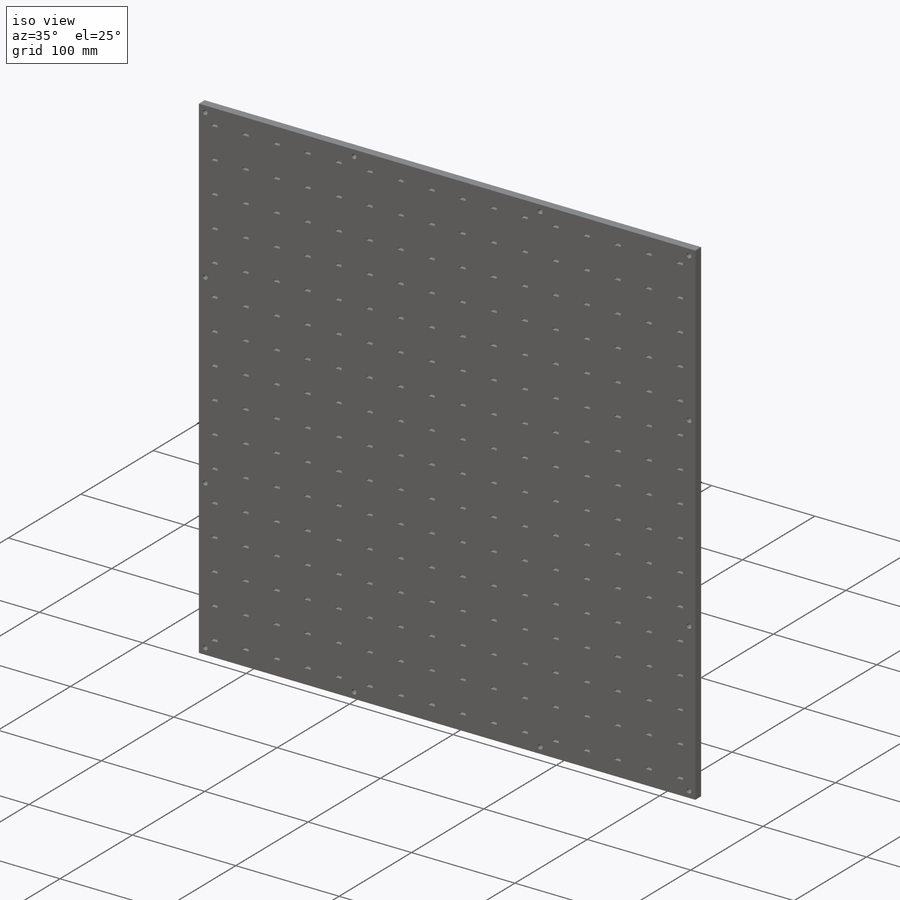
[diagram: iso view]
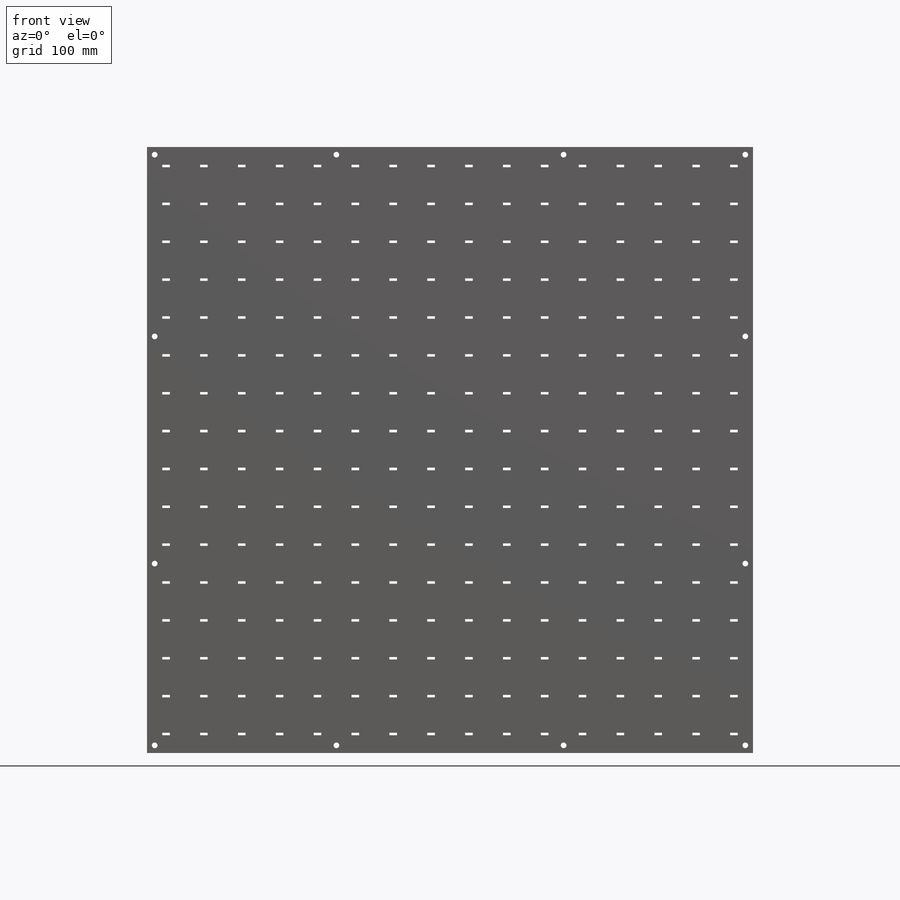
[diagram: front view]
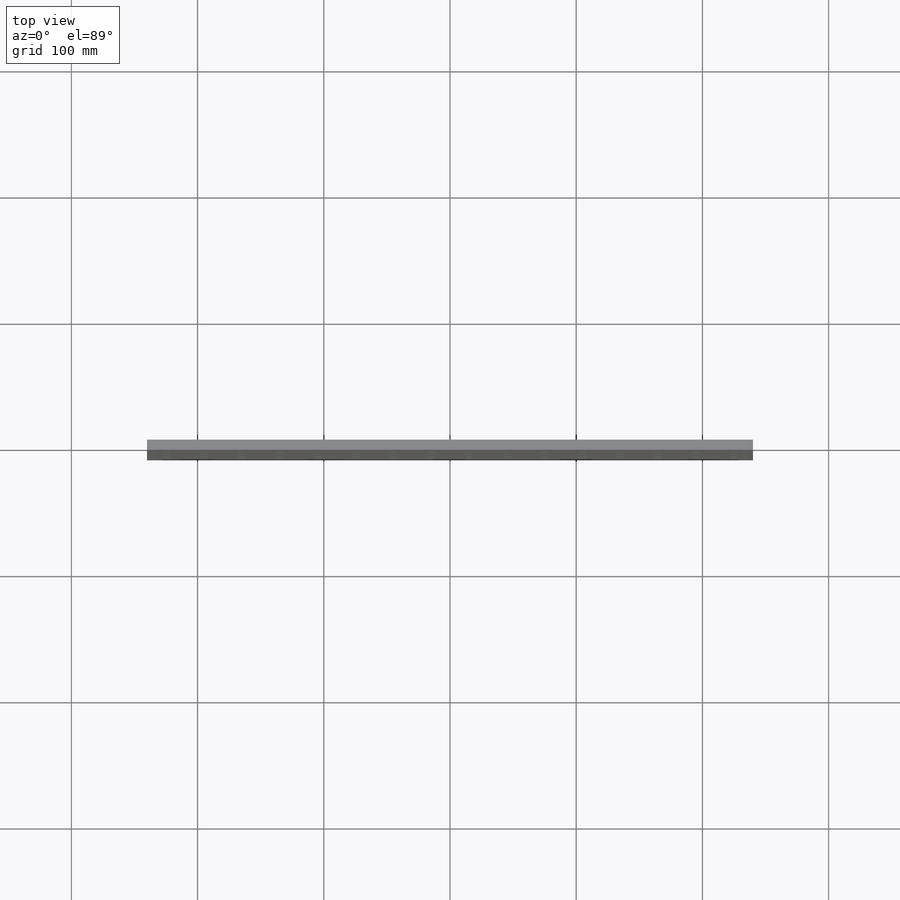
[diagram: top view]
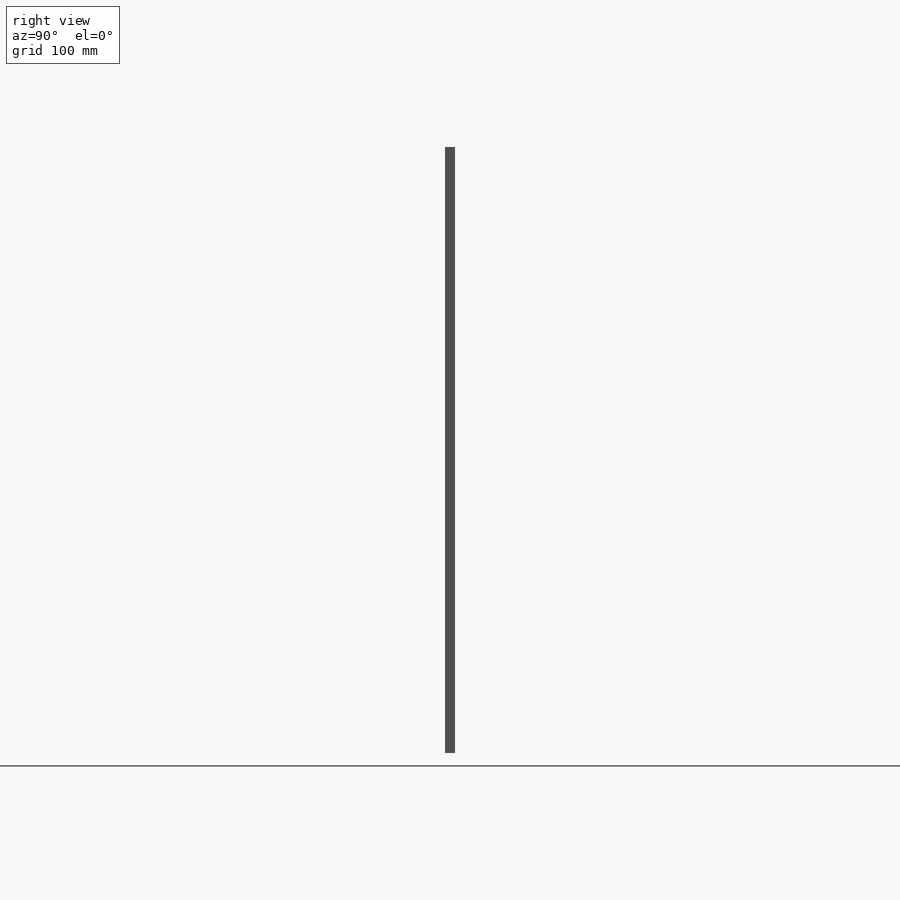
[diagram: right view]
SOLIDWORKS PART (.sldprt)
format: sldprt  version: not decoded by parser v0  size: 940,032 bytes
history: native  units: mm
features: sketch x3, cut_extrude x2, mirror x2, material x1, extrude x1, pattern_linear x1, pattern_circular x1 (+16 scaffold rows collapsed)
feature tree (27):
  scaffold x16  (default folders/planes/origin — collapsed)
  material  "Material <not specified>"
  sketch  "Sketch1"  dims[D1=480.2mm]
  extrude  "Boss-Extrude1"  Depth=8mm
  sketch  "Sketch5"  dims[D1=6.0mm D2=2.0mm D3=15.1mm D4=15.1mm D5=5.5mm D6=1.5mm]
  cut_extrude  "Cut-Extrude2"  [1 undecoded]
  pattern_linear  "LPattern2"  Count1=16 Count2=16 Spacing1=30mm Spacing2=30mm
  sketch  "Sketch4"  dims[c1.D1=4.5mm c1.D2=4.5mm c1.D4=4.5mm c2.D2=6.1mm c2.D3=180.0mm c2.D4=12.25mm]
  cut_extrude  "Cut-Extrude1"  [1 undecoded]
  pattern_circular  "CirPattern1"  Count=4 Angle=90deg
  mirror  "Mirror1"
  mirror  "Mirror2"
decode coverage: 6 of 10 modeling features carry decoded parameters
note: 2 parameter values undecoded
note: suppression state not decoded; provenance and decode notes live in map.json
